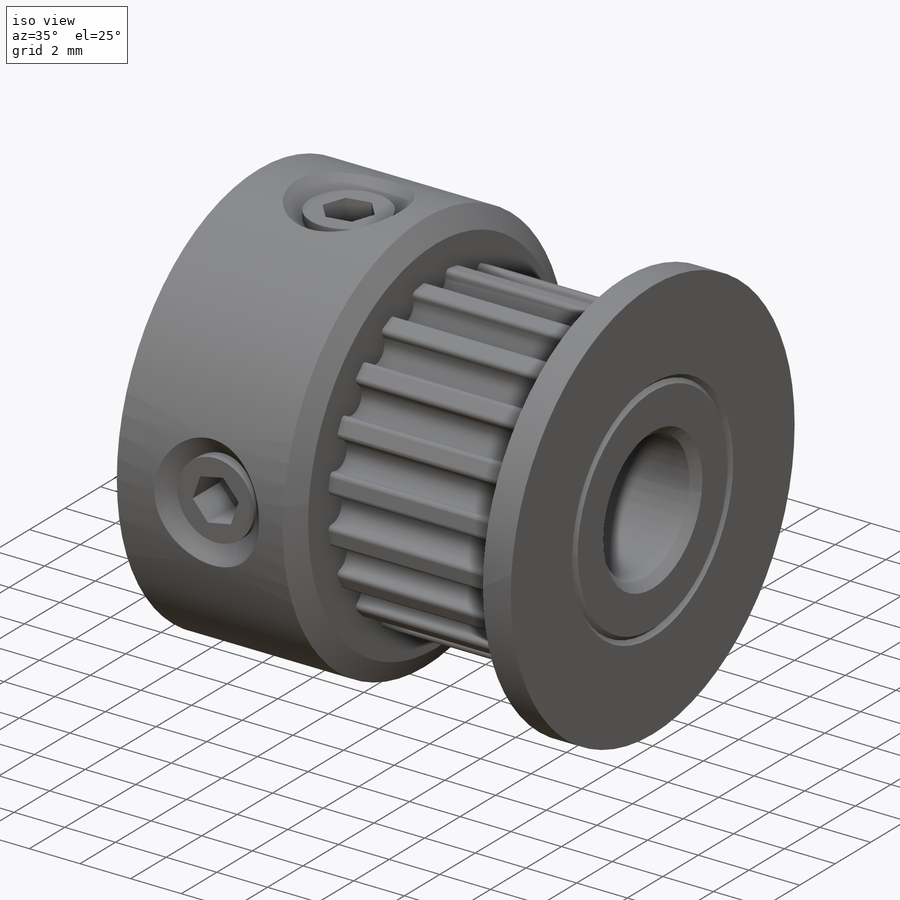
[diagram: iso view]
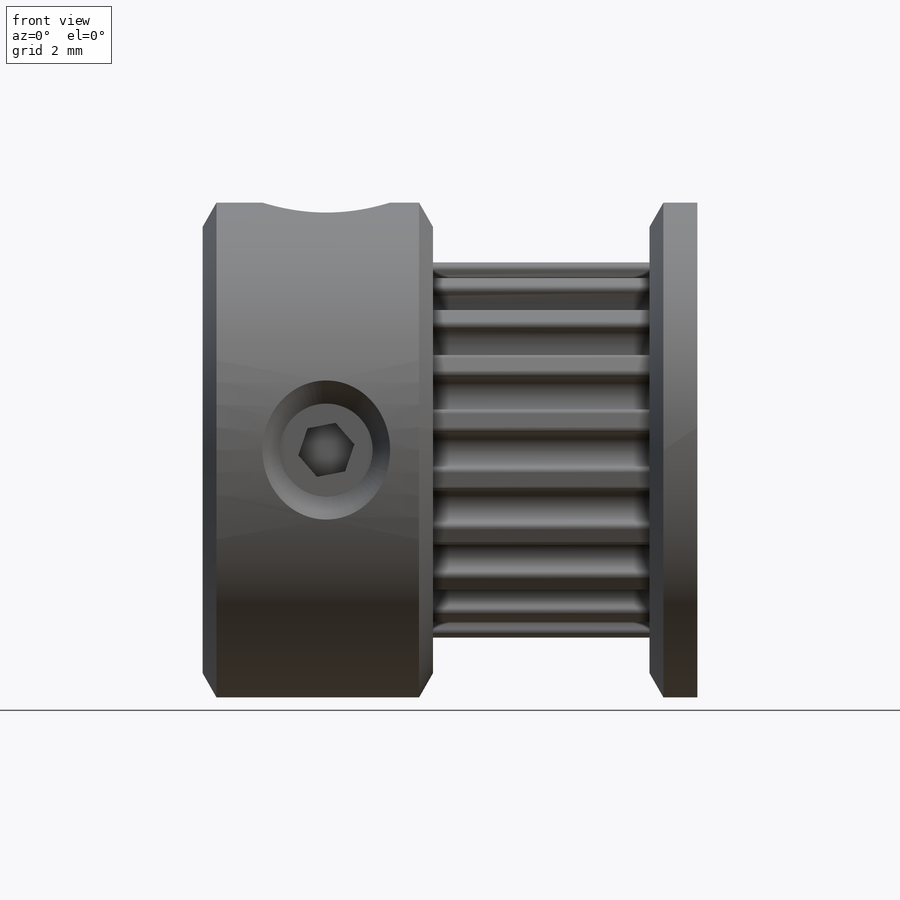
[diagram: front view]
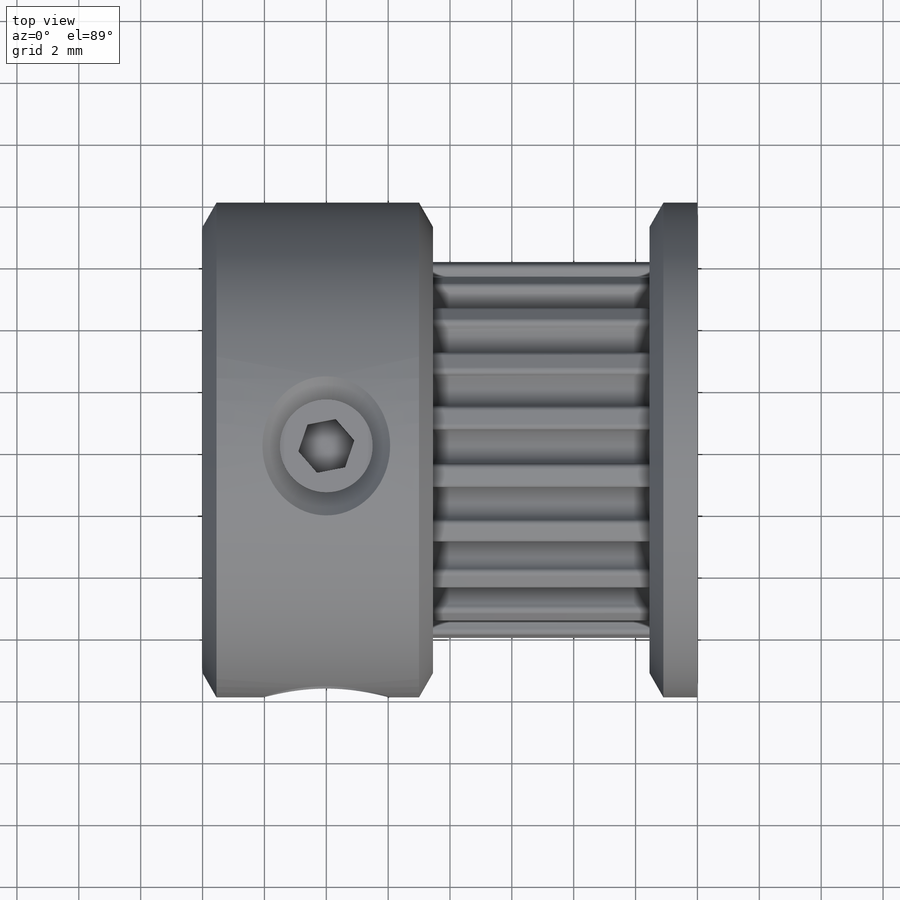
[diagram: top view]
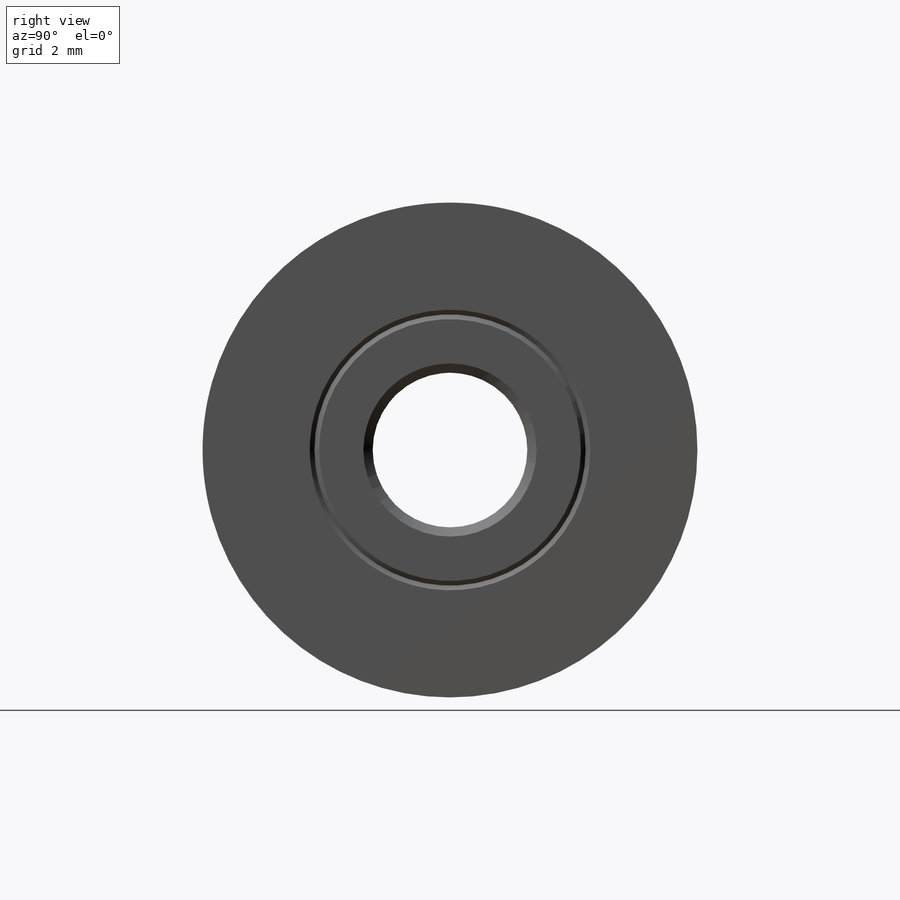
[diagram: right view]
SOLIDWORKS PART (.sldprt)
format: sldprt  version: not decoded by parser v0  size: 614,912 bytes
history: native  units: mm
features: sketch x6, cut_extrude x4, plane x3, chamfer x2, pattern_circular x2, material x1, revolve x1, fillet x1, extrude x1 (+9 scaffold rows collapsed)
feature tree (30):
  scaffold x9  (default folders/planes/origin — collapsed)
  material  "6061-O (SS)"
  plane  "Сверху"
  plane  "Справа"
  plane  "Спереди"
  sketch  "Эскиз1"  dims[c1.D22=0.1mm c1.D1=7.0mm c1.D2=5.5mm c1.D3=7.5mm c1.D4=0.15mm c1.D5=0.5mm c1.D6=1.0mm c1.D7=0.65mm c1.D8=7.0mm c1.D9=7.5mm c1.D10=16.0mm c1.D11=8.0mm c1.D12=1.0mm c1.D13=1.0mm c1.D14=~1.019239mm c2.D13=2.0mm c2.D14=~4.350472mm c2.D15=0.5mm c3.D14=14.0mm c3.D15=1.84mm c3.D17=~0.256133mm c3.D7=7.45mm c3.D8=7.0mm c3.D18=3.5mm c3.D19=~3.501218mm c4.D18=3.5mm c4.D19=0.3mm c4.D20=3.2mm c4.D21=0.3mm c4.D22=~1.390591mm c4.D23=0.1mm c4.D13=4.25mm c4.D6=6.11mm c4.D4=4.25mm c5.D13=~0.615262mm c5.D5=1.0mm c5.D9=5.5mm c5.D2=5.5mm c6.D9=~0.531394mm]
  revolve  "Body"  Angle=360deg
  sketch  "Эскиз2"  dims[D1=5.0mm]
  cut_extrude  "Bore"  [1 undecoded]
  sketch  "Эскиз3"  dims[c1.D1=~0.914771mm c1.D2=1.0mm c2.D1=12.84mm c2.D3=1.1mm c3.D1=5.855mm c3.D2=2.0mm c4.D2=20.0]
  cut_extrude  "20T"  Depth=7mm
  fillet  "Fillet"  Radius=0.16mm
  sketch  "Эскиз4"  dims[D1=3.0mm D2=4.0mm D3=3.0mm]
  cut_extrude  "Fix"  [1 undecoded]
  chamfer  "Chamfer1"  Distance=0.7mm Angle=54deg
  pattern_circular  "CirPattern1"  Count=2 Angle=270deg
  sketch  "Эскиз6"  dims[D1=1.6mm]
  extrude  "Fix1"  Depth=3mm
  cut_extrude  "Hex1"  [1 undecoded]
  sketch  "Эскиз6<3>"  dims[D19=6.0mm]
  pattern_circular  "CirPattern2"  Count=2 Angle=90deg
  chamfer  "Chamfer2"  Distance=0.3mm Angle=45deg
decode coverage: 14 of 17 modeling features carry decoded parameters
note: ~ marks probable driven/reference dimensions
note: 3 parameter values undecoded
summary: no parameter record found for 3 features
note: suppression state not decoded; provenance and decode notes live in map.json
